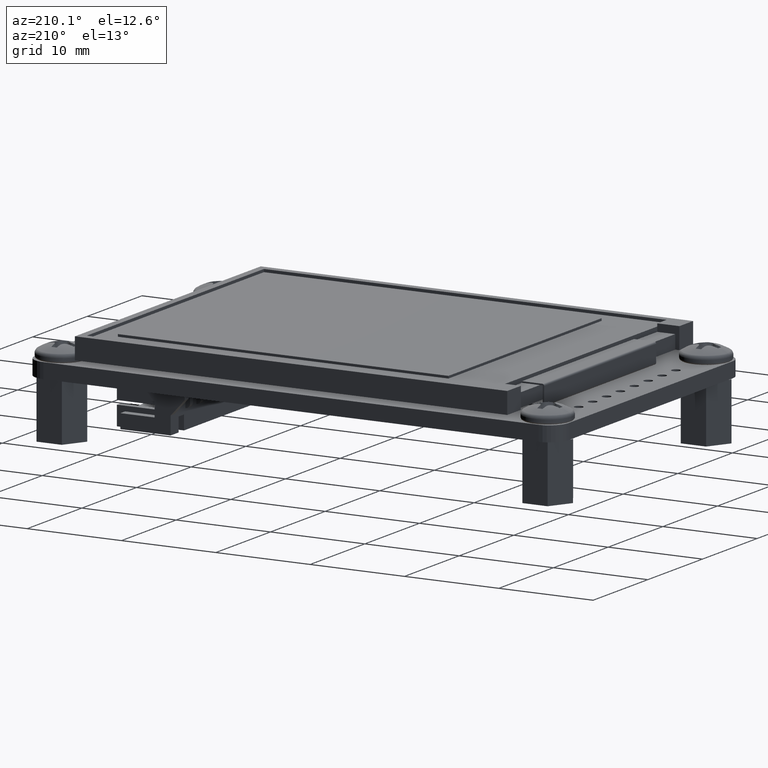
[diagram: clean part render]
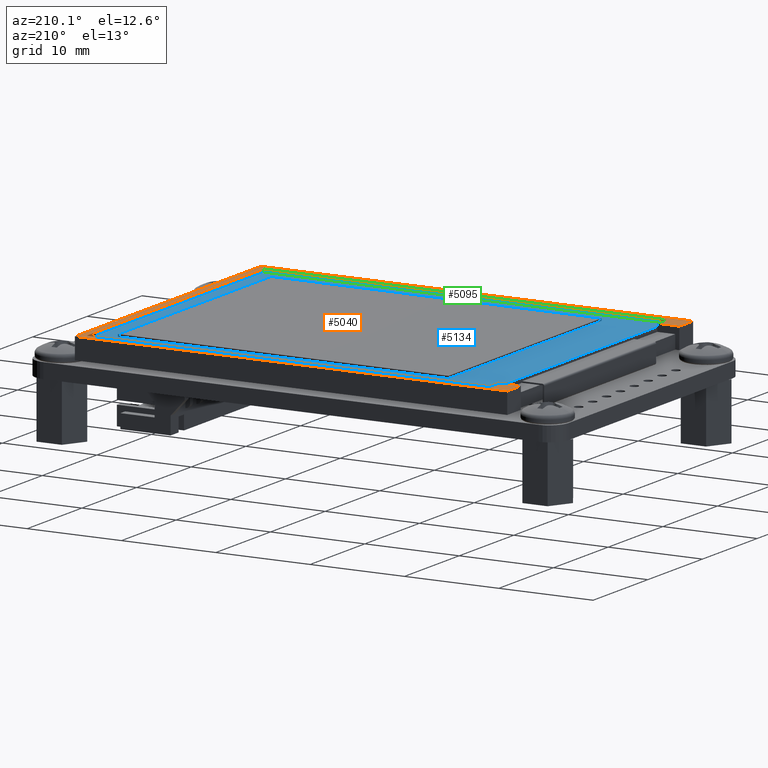
[diagram: same view with three faces highlighted in distinct colors, each labeled with its STEP entity id]
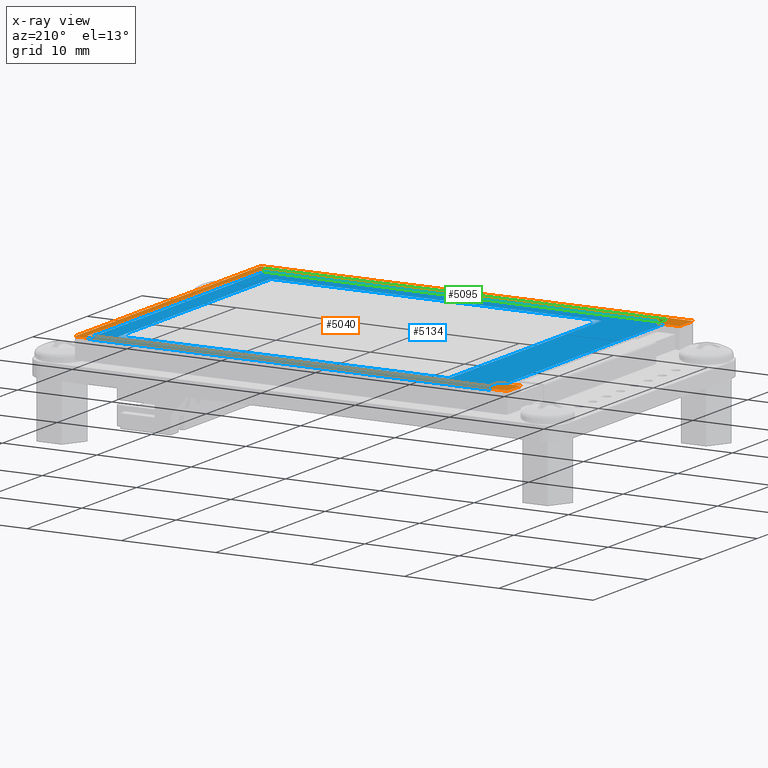
[diagram: x-ray of the same camera — body ghosted, the three highlighted faces saturated]
A machine part, auxiliary view with three faces highlighted in distinct colors.
The next image is the same camera in x-ray (body ghosted, the three faces saturated) — at least one of them is partly hidden behind the body in this view.
Their STEP definitions:

[orange] entity #5040 — the highlighted planar face has unit normal (0, 0, 1).
#4162=DIRECTION('',(0.E0,-1.E0,0.E0));
#4163=VECTOR('',#4162,4.268E1);
#4164=CARTESIAN_POINT('',(-1.62E1,1.955E1,2.25E0));
#4165=LINE('',#4164,#4163);
#4169=DIRECTION('',(1.E0,0.E0,0.E0));
#4170=VECTOR('',#4169,1.7E0);
#4171=CARTESIAN_POINT('',(-1.62E1,-2.313E1,2.25E0));
#4172=LINE('',#4171,#4170);
#4176=DIRECTION('',(0.E0,1.E0,0.E0));
#4177=VECTOR('',#4176,2.35E0);
#4178=CARTESIAN_POINT('',(-1.45E1,-2.548E1,2.25E0));
#4179=LINE('',#4178,#4177);
#4183=DIRECTION('',(1.E0,0.E0,0.E0));
#4184=VECTOR('',#4183,2.5E0);
#4185=CARTESIAN_POINT('',(-1.7E1,-2.548E1,2.25E0));
#4186=LINE('',#4185,#4184);
#4190=DIRECTION('',(0.E0,-1.E0,0.E0));
#4191=VECTOR('',#4190,4.583E1);
#4192=CARTESIAN_POINT('',(-1.7E1,2.035E1,2.25E0));
#4193=LINE('',#4192,#4191);
#4197=DIRECTION('',(-1.E0,0.E0,0.E0));
#4198=VECTOR('',#4197,3.4E1);
#4199=CARTESIAN_POINT('',(1.7E1,2.035E1,2.25E0));
#4200=LINE('',#4199,#4198);
#4204=DIRECTION('',(0.E0,1.E0,0.E0));
#4205=VECTOR('',#4204,4.583E1);
#4206=CARTESIAN_POINT('',(1.7E1,-2.548E1,2.25E0));
#4207=LINE('',#4206,#4205);
#4211=DIRECTION('',(1.E0,0.E0,0.E0));
#4212=VECTOR('',#4211,2.5E0);
#4213=CARTESIAN_POINT('',(1.45E1,-2.548E1,2.25E0));
#4214=LINE('',#4213,#4212);
#4218=DIRECTION('',(0.E0,1.E0,0.E0));
#4219=VECTOR('',#4218,2.35E0);
#4220=CARTESIAN_POINT('',(1.45E1,-2.548E1,2.25E0));
#4221=LINE('',#4220,#4219);
#4225=DIRECTION('',(1.E0,0.E0,0.E0));
#4226=VECTOR('',#4225,1.7E0);
#4227=CARTESIAN_POINT('',(1.45E1,-2.313E1,2.25E0));
#4228=LINE('',#4227,#4226);
#4232=DIRECTION('',(0.E0,1.E0,0.E0));
#4233=VECTOR('',#4232,4.268E1);
#4234=CARTESIAN_POINT('',(1.62E1,-2.313E1,2.25E0));
#4235=LINE('',#4234,#4233);
#4239=DIRECTION('',(-1.E0,0.E0,0.E0));
#4240=VECTOR('',#4239,3.24E1);
#4241=CARTESIAN_POINT('',(1.62E1,1.955E1,2.25E0));
#4242=LINE('',#4241,#4240);
#4794=CARTESIAN_POINT('',(-1.7E1,2.035E1,2.25E0));
#4795=CARTESIAN_POINT('',(-1.7E1,-2.548E1,2.25E0));
#4796=VERTEX_POINT('',#4794);
#4797=VERTEX_POINT('',#4795);
#4798=CARTESIAN_POINT('',(1.7E1,-2.548E1,2.25E0));
#4799=CARTESIAN_POINT('',(1.7E1,2.035E1,2.25E0));
#4800=VERTEX_POINT('',#4798);
#4801=VERTEX_POINT('',#4799);
#4826=CARTESIAN_POINT('',(-1.62E1,1.955E1,2.25E0));
#4827=CARTESIAN_POINT('',(-1.62E1,-2.313E1,2.25E0));
#4828=VERTEX_POINT('',#4826);
#4829=VERTEX_POINT('',#4827);
#4830=CARTESIAN_POINT('',(-1.45E1,-2.313E1,2.25E0));
#4831=VERTEX_POINT('',#4830);
#4832=CARTESIAN_POINT('',(-1.45E1,-2.548E1,2.25E0));
#4833=VERTEX_POINT('',#4832);
#4834=CARTESIAN_POINT('',(1.45E1,-2.548E1,2.25E0));
#4835=CARTESIAN_POINT('',(1.45E1,-2.313E1,2.25E0));
#4836=VERTEX_POINT('',#4834);
#4837=VERTEX_POINT('',#4835);
#4838=CARTESIAN_POINT('',(1.62E1,-2.313E1,2.25E0));
#4839=VERTEX_POINT('',#4838);
#4840=CARTESIAN_POINT('',(1.62E1,1.955E1,2.25E0));
#4841=VERTEX_POINT('',#4840);
#5012=CARTESIAN_POINT('',(0.E0,0.E0,2.25E0));
#5013=DIRECTION('',(0.E0,0.E0,1.E0));
#5014=DIRECTION('',(1.E0,0.E0,0.E0));
#5015=AXIS2_PLACEMENT_3D('',#5012,#5013,#5014);
#5016=PLANE('',#5015);
#5018=ORIENTED_EDGE('',*,*,#5017,.T.);
#5020=ORIENTED_EDGE('',*,*,#5019,.T.);
#5022=ORIENTED_EDGE('',*,*,#5021,.F.);
#5023=ORIENTED_EDGE('',*,*,#4995,.F.);
#5025=ORIENTED_EDGE('',*,*,#5024,.F.);
#5027=ORIENTED_EDGE('',*,*,#5026,.F.);
#5029=ORIENTED_EDGE('',*,*,#5028,.F.);
#5030=ORIENTED_EDGE('',*,*,#4965,.F.);
#5031=ORIENTED_EDGE('',*,*,#4954,.T.);
#5033=ORIENTED_EDGE('',*,*,#5032,.T.);
#5035=ORIENTED_EDGE('',*,*,#5034,.T.);
#5037=ORIENTED_EDGE('',*,*,#5036,.T.);
#5038=EDGE_LOOP('',(#5018,#5020,#5022,#5023,#5025,#5027,#5029,#5030,#5031,#5033,
#5035,#5037));
#5039=FACE_OUTER_BOUND('',#5038,.F.);
#5040=ADVANCED_FACE('',(#5039),#5016,.T.);
#4954=EDGE_CURVE('',#4836,#4837,#4221,.T.);
#4965=EDGE_CURVE('',#4836,#4800,#4214,.T.);
#4995=EDGE_CURVE('',#4797,#4833,#4186,.T.);
#5017=EDGE_CURVE('',#4828,#4829,#4165,.T.);
#5019=EDGE_CURVE('',#4829,#4831,#4172,.T.);
#5021=EDGE_CURVE('',#4833,#4831,#4179,.T.);
#5024=EDGE_CURVE('',#4796,#4797,#4193,.T.);
#5026=EDGE_CURVE('',#4801,#4796,#4200,.T.);
#5028=EDGE_CURVE('',#4800,#4801,#4207,.T.);
#5032=EDGE_CURVE('',#4837,#4839,#4228,.T.);
#5034=EDGE_CURVE('',#4839,#4841,#4235,.T.);
#5036=EDGE_CURVE('',#4841,#4828,#4242,.T.);

[blue] entity #5134 — the highlighted planar face has unit normal (0, 0, 1).
#4274=DIRECTION('',(1.E0,0.E0,0.E0));
#4275=VECTOR('',#4274,2.803E1);
#4276=CARTESIAN_POINT('',(-1.4015E1,1.752E1,1.95E0));
#4277=LINE('',#4276,#4275);
#4281=DIRECTION('',(0.E0,1.E0,0.E0));
#4282=VECTOR('',#4281,3.504E1);
#4283=CARTESIAN_POINT('',(-1.4015E1,-1.752E1,1.95E0));
#4284=LINE('',#4283,#4282);
#4288=DIRECTION('',(-1.E0,0.E0,0.E0));
#4289=VECTOR('',#4288,2.803E1);
#4290=CARTESIAN_POINT('',(1.4015E1,-1.752E1,1.95E0));
#4291=LINE('',#4290,#4289);
#4295=DIRECTION('',(0.E0,-1.E0,0.E0));
#4296=VECTOR('',#4295,3.504E1);
#4297=CARTESIAN_POINT('',(1.4015E1,1.752E1,1.95E0));
#4298=LINE('',#4297,#4296);
#4302=DIRECTION('',(-1.E0,0.E0,0.E0));
#4303=VECTOR('',#4302,2.9E1);
#4304=CARTESIAN_POINT('',(1.45E1,-2.313E1,1.95E0));
#4305=LINE('',#4304,#4303);
#4309=DIRECTION('',(1.E0,0.E0,0.E0));
#4310=VECTOR('',#4309,1.7E0);
#4311=CARTESIAN_POINT('',(-1.62E1,-2.313E1,1.95E0));
#4312=LINE('',#4311,#4310);
#4316=DIRECTION('',(0.E0,-1.E0,0.E0));
#4317=VECTOR('',#4316,4.268E1);
#4318=CARTESIAN_POINT('',(-1.62E1,1.955E1,1.95E0));
#4319=LINE('',#4318,#4317);
#4323=DIRECTION('',(-1.E0,0.E0,0.E0));
#4324=VECTOR('',#4323,3.24E1);
#4325=CARTESIAN_POINT('',(1.62E1,1.955E1,1.95E0));
#4326=LINE('',#4325,#4324);
#4330=DIRECTION('',(0.E0,1.E0,0.E0));
#4331=VECTOR('',#4330,4.268E1);
#4332=CARTESIAN_POINT('',(1.62E1,-2.313E1,1.95E0));
#4333=LINE('',#4332,#4331);
#4337=DIRECTION('',(1.E0,0.E0,0.E0));
#4338=VECTOR('',#4337,1.7E0);
#4339=CARTESIAN_POINT('',(1.45E1,-2.313E1,1.95E0));
#4340=LINE('',#4339,#4338);
#4802=CARTESIAN_POINT('',(-1.4015E1,1.752E1,1.95E0));
#4803=CARTESIAN_POINT('',(1.4015E1,1.752E1,1.95E0));
#4804=VERTEX_POINT('',#4802);
#4805=VERTEX_POINT('',#4803);
#4806=CARTESIAN_POINT('',(1.4015E1,-1.752E1,1.95E0));
#4807=VERTEX_POINT('',#4806);
#4808=CARTESIAN_POINT('',(-1.4015E1,-1.752E1,1.95E0));
#4809=VERTEX_POINT('',#4808);
#4810=CARTESIAN_POINT('',(-1.62E1,1.955E1,1.95E0));
#4811=CARTESIAN_POINT('',(-1.62E1,-2.313E1,1.95E0));
#4812=VERTEX_POINT('',#4810);
#4813=VERTEX_POINT('',#4811);
#4814=CARTESIAN_POINT('',(1.62E1,-2.313E1,1.95E0));
#4815=CARTESIAN_POINT('',(1.62E1,1.955E1,1.95E0));
#4816=VERTEX_POINT('',#4814);
#4817=VERTEX_POINT('',#4815);
#4842=CARTESIAN_POINT('',(1.45E1,-2.313E1,1.95E0));
#4843=CARTESIAN_POINT('',(-1.45E1,-2.313E1,1.95E0));
#4844=VERTEX_POINT('',#4842);
#4845=VERTEX_POINT('',#4843);
#5109=CARTESIAN_POINT('',(0.E0,0.E0,1.95E0));
#5110=DIRECTION('',(0.E0,0.E0,1.E0));
#5111=DIRECTION('',(1.E0,0.E0,0.E0));
#5112=AXIS2_PLACEMENT_3D('',#5109,#5110,#5111);
#5113=PLANE('',#5112);
#5115=ORIENTED_EDGE('',*,*,#5114,.T.);
#5117=ORIENTED_EDGE('',*,*,#5116,.F.);
#5118=ORIENTED_EDGE('',*,*,#5061,.F.);
#5119=ORIENTED_EDGE('',*,*,#5076,.F.);
#5120=ORIENTED_EDGE('',*,*,#5090,.F.);
#5121=ORIENTED_EDGE('',*,*,#5101,.F.);
#5122=EDGE_LOOP('',(#5115,#5117,#5118,#5119,#5120,#5121));
#5123=FACE_OUTER_BOUND('',#5122,.F.);
#5125=ORIENTED_EDGE('',*,*,#5124,.F.);
#5127=ORIENTED_EDGE('',*,*,#5126,.F.);
#5129=ORIENTED_EDGE('',*,*,#5128,.F.);
#5131=ORIENTED_EDGE('',*,*,#5130,.F.);
#5132=EDGE_LOOP('',(#5125,#5127,#5129,#5131));
#5133=FACE_BOUND('',#5132,.F.);
#5134=ADVANCED_FACE('',(#5123,#5133),#5113,.T.);
#5061=EDGE_CURVE('',#4812,#4813,#4319,.T.);
#5076=EDGE_CURVE('',#4817,#4812,#4326,.T.);
#5090=EDGE_CURVE('',#4816,#4817,#4333,.T.);
#5101=EDGE_CURVE('',#4844,#4816,#4340,.T.);
#5114=EDGE_CURVE('',#4844,#4845,#4305,.T.);
#5116=EDGE_CURVE('',#4813,#4845,#4312,.T.);
#5124=EDGE_CURVE('',#4804,#4805,#4277,.T.);
#5126=EDGE_CURVE('',#4809,#4804,#4284,.T.);
#5128=EDGE_CURVE('',#4807,#4809,#4291,.T.);
#5130=EDGE_CURVE('',#4805,#4807,#4298,.T.);

[green] entity #5095 — the highlighted planar face has unit normal (0.0002, -1, 0).
#4232=DIRECTION('',(0.E0,1.E0,0.E0));
#4233=VECTOR('',#4232,4.268E1);
#4234=CARTESIAN_POINT('',(1.62E1,-2.313E1,2.25E0));
#4235=LINE('',#4234,#4233);
#4253=DIRECTION('',(0.E0,0.E0,-1.E0));
#4254=VECTOR('',#4253,3.E-1);
#4255=CARTESIAN_POINT('',(1.62E1,1.955E1,2.25E0));
#4256=LINE('',#4255,#4254);
#4260=DIRECTION('',(0.E0,0.E0,-1.E0));
#4261=VECTOR('',#4260,3.E-1);
#4262=CARTESIAN_POINT('',(1.62E1,-2.313E1,2.25E0));
#4263=LINE('',#4262,#4261);
#4330=DIRECTION('',(0.E0,1.E0,0.E0));
#4331=VECTOR('',#4330,4.268E1);
#4332=CARTESIAN_POINT('',(1.62E1,-2.313E1,1.95E0));
#4333=LINE('',#4332,#4331);
#4814=CARTESIAN_POINT('',(1.62E1,-2.313E1,1.95E0));
#4815=CARTESIAN_POINT('',(1.62E1,1.955E1,1.95E0));
#4816=VERTEX_POINT('',#4814);
#4817=VERTEX_POINT('',#4815);
#4838=CARTESIAN_POINT('',(1.62E1,-2.313E1,2.25E0));
#4839=VERTEX_POINT('',#4838);
#4840=CARTESIAN_POINT('',(1.62E1,1.955E1,2.25E0));
#4841=VERTEX_POINT('',#4840);
#5082=CARTESIAN_POINT('',(1.62E1,-2.313E1,2.25E0));
#5083=DIRECTION('',(1.E0,0.E0,0.E0));
#5084=DIRECTION('',(0.E0,1.E0,0.E0));
#5085=AXIS2_PLACEMENT_3D('',#5082,#5083,#5084);
#5086=PLANE('',#5085);
#5087=ORIENTED_EDGE('',*,*,#5034,.F.);
#5089=ORIENTED_EDGE('',*,*,#5088,.T.);
#5091=ORIENTED_EDGE('',*,*,#5090,.T.);
#5092=ORIENTED_EDGE('',*,*,#5074,.F.);
#5093=EDGE_LOOP('',(#5087,#5089,#5091,#5092));
#5094=FACE_OUTER_BOUND('',#5093,.F.);
#5095=ADVANCED_FACE('',(#5094),#5086,.F.);
#5034=EDGE_CURVE('',#4839,#4841,#4235,.T.);
#5074=EDGE_CURVE('',#4841,#4817,#4256,.T.);
#5088=EDGE_CURVE('',#4839,#4816,#4263,.T.);
#5090=EDGE_CURVE('',#4816,#4817,#4333,.T.);